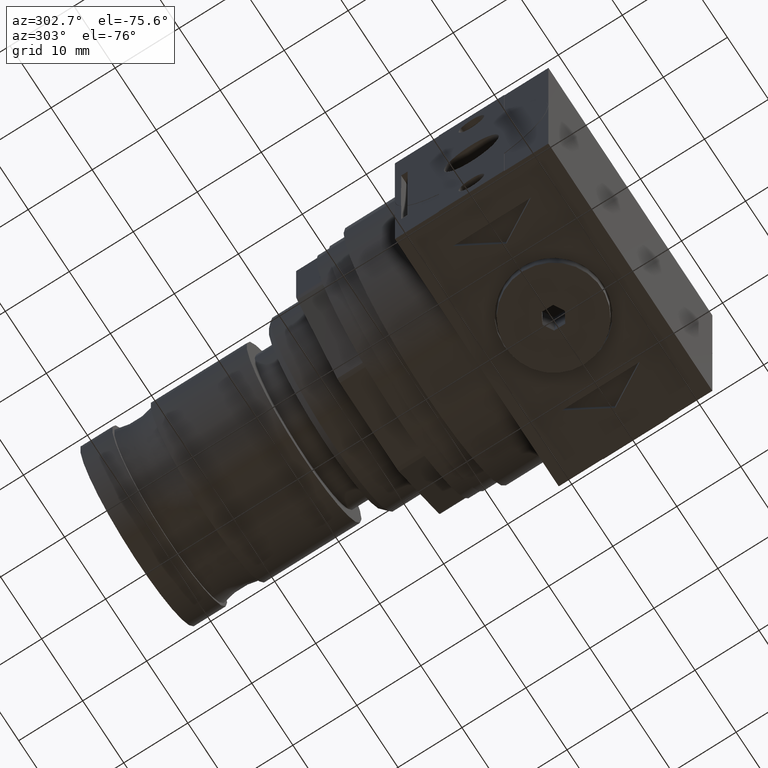
[diagram: clean part render]
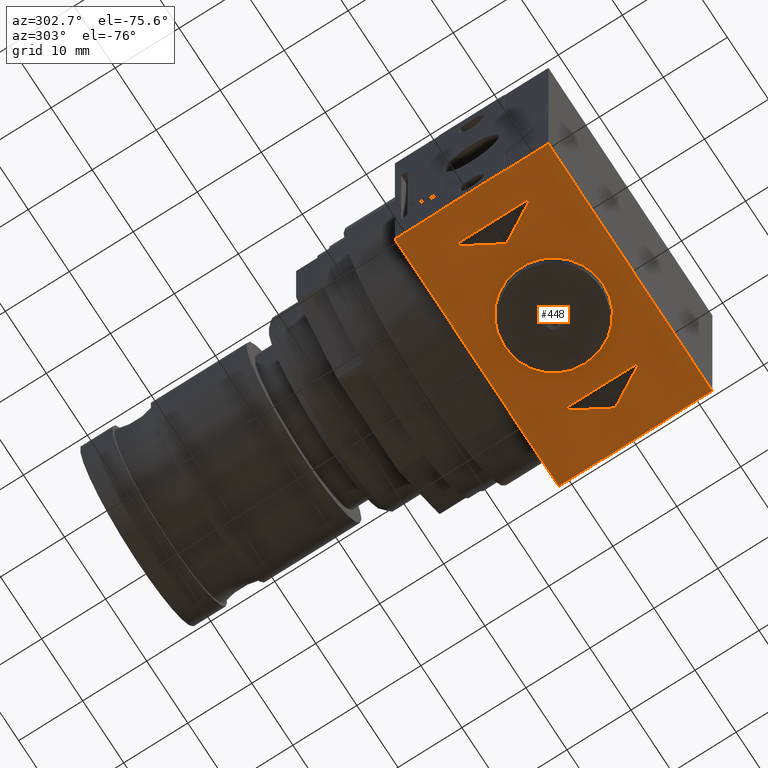
[diagram: same view with one face highlighted and labeled with its STEP entity id]
A machine part, auxiliary view. The second image highlights one B-rep face of the part: STEP entity #448.
In plain terms, the highlighted planar face has unit normal (0, 0, 1).
Its self-contained STEP definition (entity closure, byte-faithful):
#448 = ADVANCED_FACE( '', ( #901, #902, #903, #904 ), #905, .F. );
#901 = FACE_BOUND( '', #1346, .T. );
#902 = FACE_BOUND( '', #1347, .T. );
#903 = FACE_OUTER_BOUND( '', #1348, .T. );
#904 = FACE_BOUND( '', #1349, .T. );
#905 = PLANE( '', #1350 );
#1346 = EDGE_LOOP( '', ( #2329, #2330, #2331 ) );
#1347 = EDGE_LOOP( '', ( #2332 ) );
#1348 = EDGE_LOOP( '', ( #2333, #2334, #2335, #2336, #2337, #2338, #2339, #2340, #2341, #2342, #2343, #2344 ) );
#1349 = EDGE_LOOP( '', ( #2345, #2346, #2347 ) );
#1350 = AXIS2_PLACEMENT_3D( '', #2348, #2349, #2350 );
#2329 = ORIENTED_EDGE( '', *, *, #2712, .T. );
#2330 = ORIENTED_EDGE( '', *, *, #2793, .T. );
#2331 = ORIENTED_EDGE( '', *, *, #2627, .T. );
#2332 = ORIENTED_EDGE( '', *, *, #2700, .T. );
#2333 = ORIENTED_EDGE( '', *, *, #2795, .F. );
#2334 = ORIENTED_EDGE( '', *, *, #2737, .T. );
#2335 = ORIENTED_EDGE( '', *, *, #2797, .F. );
#2336 = ORIENTED_EDGE( '', *, *, #2696, .F. );
#2337 = ORIENTED_EDGE( '', *, *, #2706, .F. );
#2338 = ORIENTED_EDGE( '', *, *, #2652, .F. );
#2339 = ORIENTED_EDGE( '', *, *, #2785, .T. );
#2340 = ORIENTED_EDGE( '', *, *, #2525, .F. );
#2341 = ORIENTED_EDGE( '', *, *, #2741, .T. );
#2342 = ORIENTED_EDGE( '', *, *, #2644, .T. );
#2343 = ORIENTED_EDGE( '', *, *, #2702, .T. );
#2344 = ORIENTED_EDGE( '', *, *, #2690, .T. );
#2345 = ORIENTED_EDGE( '', *, *, #2502, .T. );
#2346 = ORIENTED_EDGE( '', *, *, #2659, .T. );
#2347 = ORIENTED_EDGE( '', *, *, #2719, .T. );
#2348 = CARTESIAN_POINT( '', ( 19.9500000000000, -12.0000000000000, -20.0000000000000 ) );
#2349 = DIRECTION( '', ( 0.000000000000000, 0.000000000000000, 1.00000000000000 ) );
#2350 = DIRECTION( '', ( 1.00000000000000, 0.000000000000000, -0.000000000000000 ) );
#2502 = EDGE_CURVE( '', #2951, #2952, #2953, .T. );
#2525 = EDGE_CURVE( '', #2990, #2986, #2992, .T. );
#2627 = EDGE_CURVE( '', #3155, #3156, #3157, .T. );
#2644 = EDGE_CURVE( '', #3179, #3177, #3180, .T. );
#2652 = EDGE_CURVE( '', #3190, #3192, #3193, .T. );
#2659 = EDGE_CURVE( '', #2952, #3202, #3203, .T. );
#2690 = EDGE_CURVE( '', #3244, #3242, #3245, .T. );
#2696 = EDGE_CURVE( '', #3250, #3252, #3253, .T. );
#2700 = EDGE_CURVE( '', #3257, #3257, #3258, .T. );
#2702 = EDGE_CURVE( '', #3177, #3244, #3260, .T. );
#2706 = EDGE_CURVE( '', #3192, #3250, #3264, .T. );
#2712 = EDGE_CURVE( '', #3156, #3270, #3271, .T. );
#2719 = EDGE_CURVE( '', #3202, #2951, #3280, .T. );
#2737 = EDGE_CURVE( '', #3303, #3301, #3304, .T. );
#2741 = EDGE_CURVE( '', #2990, #3179, #3309, .T. );
#2785 = EDGE_CURVE( '', #3190, #2986, #3360, .T. );
#2793 = EDGE_CURVE( '', #3270, #3155, #3368, .T. );
#2795 = EDGE_CURVE( '', #3303, #3242, #3370, .T. );
#2797 = EDGE_CURVE( '', #3252, #3301, #3372, .T. );
#2951 = VERTEX_POINT( '', #3565 );
#2952 = VERTEX_POINT( '', #3566 );
#2953 = LINE( '', #3567, #3568 );
#2986 = VERTEX_POINT( '', #3612 );
#2990 = VERTEX_POINT( '', #3617 );
#2992 = LINE( '', #3620, #3621 );
#3155 = VERTEX_POINT( '', #3825 );
#3156 = VERTEX_POINT( '', #3826 );
#3157 = LINE( '', #3827, #3828 );
#3177 = VERTEX_POINT( '', #3858 );
#3179 = VERTEX_POINT( '', #3861 );
#3180 = LINE( '', #3862, #3863 );
#3190 = VERTEX_POINT( '', #3877 );
#3192 = VERTEX_POINT( '', #3880 );
#3193 = LINE( '', #3881, #3882 );
#3202 = VERTEX_POINT( '', #3892 );
#3203 = LINE( '', #3893, #3894 );
#3242 = VERTEX_POINT( '', #3948 );
#3244 = VERTEX_POINT( '', #3951 );
#3245 = LINE( '', #3952, #3953 );
#3250 = VERTEX_POINT( '', #3961 );
#3252 = VERTEX_POINT( '', #3964 );
#3253 = LINE( '', #3965, #3966 );
#3257 = VERTEX_POINT( '', #3972 );
#3258 = CIRCLE( '', #3973, 7.75000000000000 );
#3260 = LINE( '', #3975, #3976 );
#3264 = LINE( '', #3981, #3982 );
#3270 = VERTEX_POINT( '', #3989 );
#3271 = LINE( '', #3990, #3991 );
#3280 = LINE( '', #4004, #4005 );
#3301 = VERTEX_POINT( '', #4033 );
#3303 = VERTEX_POINT( '', #4036 );
#3304 = LINE( '', #4037, #4038 );
#3309 = LINE( '', #4044, #4045 );
#3360 = LINE( '', #4110, #4111 );
#3368 = LINE( '', #4120, #4121 );
#3370 = LINE( '', #4123, #4124 );
#3372 = LINE( '', #4126, #4127 );
#3565 = CARTESIAN_POINT( '', ( 15.0000000000000, 0.000000000000000, -20.0000000000000 ) );
#3566 = CARTESIAN_POINT( '', ( 11.5000000000000, 6.06217782649107, -20.0000000000000 ) );
#3567 = CARTESIAN_POINT( '', ( 15.0000000000000, 0.000000000000000, -20.0000000000000 ) );
#3568 = VECTOR( '', #4242, 1000.00000000000 );
#3612 = CARTESIAN_POINT( '', ( 19.9500000000000, -5.10000000000000, -20.0000000000000 ) );
#3617 = CARTESIAN_POINT( '', ( 19.9500000000000, -12.0000000000000, -20.0000000000000 ) );
#3620 = CARTESIAN_POINT( '', ( 19.9500000000000, -12.0000000000000, -20.0000000000000 ) );
#3621 = VECTOR( '', #4268, 1000.00000000000 );
#3825 = CARTESIAN_POINT( '', ( -15.0000000000000, -6.06217782649107, -20.0000000000000 ) );
#3826 = CARTESIAN_POINT( '', ( -11.5000000000000, 0.000000000000000, -20.0000000000000 ) );
#3827 = CARTESIAN_POINT( '', ( -15.0000000000000, -6.06217782649107, -20.0000000000000 ) );
#3828 = VECTOR( '', #4412, 1000.00000000000 );
#3858 = CARTESIAN_POINT( '', ( -19.9500000000000, -5.10000000000000, -20.0000000000000 ) );
#3861 = CARTESIAN_POINT( '', ( -19.9500000000000, -12.0000000000000, -20.0000000000000 ) );
#3862 = CARTESIAN_POINT( '', ( -19.9500000000000, -12.0000000000000, -20.0000000000000 ) );
#3863 = VECTOR( '', #4424, 1000.00000000000 );
#3877 = CARTESIAN_POINT( '', ( 20.0000000000000, -5.10000000000000, -20.0000000000000 ) );
#3880 = CARTESIAN_POINT( '', ( 20.0000000000000, 5.10000000000000, -20.0000000000000 ) );
#3881 = CARTESIAN_POINT( '', ( 20.0000000000000, -5.10000000000000, -20.0000000000000 ) );
#3882 = VECTOR( '', #4433, 1000.00000000000 );
#3892 = CARTESIAN_POINT( '', ( 11.5000000000000, -6.06217782649107, -20.0000000000000 ) );
#3893 = CARTESIAN_POINT( '', ( 11.5000000000000, 6.06217782649107, -20.0000000000000 ) );
#3894 = VECTOR( '', #4441, 1000.00000000000 );
#3948 = CARTESIAN_POINT( '', ( -20.0000000000000, 5.10000000000000, -20.0000000000000 ) );
#3951 = CARTESIAN_POINT( '', ( -20.0000000000000, -5.10000000000000, -20.0000000000000 ) );
#3952 = CARTESIAN_POINT( '', ( -20.0000000000000, -5.10000000000000, -20.0000000000000 ) );
#3953 = VECTOR( '', #4473, 1000.00000000000 );
#3961 = CARTESIAN_POINT( '', ( 19.9500000000000, 5.10000000000000, -20.0000000000000 ) );
#3964 = CARTESIAN_POINT( '', ( 19.9500000000000, 12.0000000000000, -20.0000000000000 ) );
#3965 = CARTESIAN_POINT( '', ( 19.9500000000000, -12.0000000000000, -20.0000000000000 ) );
#3966 = VECTOR( '', #4478, 1000.00000000000 );
#3972 = CARTESIAN_POINT( '', ( 0.000000000000000, -7.75000000000000, -20.0000000000000 ) );
#3973 = AXIS2_PLACEMENT_3D( '', #4481, #4482, #4483 );
#3975 = CARTESIAN_POINT( '', ( 20.0000000000000, -5.10000000000000, -20.0000000000000 ) );
#3976 = VECTOR( '', #4484, 1000.00000000000 );
#3981 = CARTESIAN_POINT( '', ( 20.0000000000000, 5.10000000000000, -20.0000000000000 ) );
#3982 = VECTOR( '', #4486, 1000.00000000000 );
#3989 = CARTESIAN_POINT( '', ( -15.0000000000000, 6.06217782649107, -20.0000000000000 ) );
#3990 = CARTESIAN_POINT( '', ( -11.5000000000000, 0.000000000000000, -20.0000000000000 ) );
#3991 = VECTOR( '', #4488, 1000.00000000000 );
#4004 = CARTESIAN_POINT( '', ( 11.5000000000000, -6.06217782649107, -20.0000000000000 ) );
#4005 = VECTOR( '', #4493, 1000.00000000000 );
#4033 = CARTESIAN_POINT( '', ( -19.9500000000000, 12.0000000000000, -20.0000000000000 ) );
#4036 = CARTESIAN_POINT( '', ( -19.9500000000000, 5.10000000000000, -20.0000000000000 ) );
#4037 = CARTESIAN_POINT( '', ( -19.9500000000000, -12.0000000000000, -20.0000000000000 ) );
#4038 = VECTOR( '', #4511, 1000.00000000000 );
#4044 = CARTESIAN_POINT( '', ( 19.9500000000000, -12.0000000000000, -20.0000000000000 ) );
#4045 = VECTOR( '', #4516, 1000.00000000000 );
#4110 = CARTESIAN_POINT( '', ( 20.0000000000000, -5.10000000000000, -20.0000000000000 ) );
#4111 = VECTOR( '', #4552, 1000.00000000000 );
#4120 = CARTESIAN_POINT( '', ( -15.0000000000000, 6.06217782649107, -20.0000000000000 ) );
#4121 = VECTOR( '', #4554, 1000.00000000000 );
#4123 = CARTESIAN_POINT( '', ( 20.0000000000000, 5.10000000000000, -20.0000000000000 ) );
#4124 = VECTOR( '', #4555, 1000.00000000000 );
#4126 = CARTESIAN_POINT( '', ( 19.9500000000000, 12.0000000000000, -20.0000000000000 ) );
#4127 = VECTOR( '', #4556, 1000.00000000000 );
#4242 = DIRECTION( '', ( -0.500000000000000, 0.866025403784439, 0.000000000000000 ) );
#4268 = DIRECTION( '', ( 0.000000000000000, 1.00000000000000, 0.000000000000000 ) );
#4412 = DIRECTION( '', ( 0.500000000000000, 0.866025403784439, 0.000000000000000 ) );
#4424 = DIRECTION( '', ( 0.000000000000000, 1.00000000000000, 0.000000000000000 ) );
#4433 = DIRECTION( '', ( 0.000000000000000, 1.00000000000000, 0.000000000000000 ) );
#4441 = DIRECTION( '', ( 0.000000000000000, -1.00000000000000, 0.000000000000000 ) );
#4473 = DIRECTION( '', ( 0.000000000000000, 1.00000000000000, 0.000000000000000 ) );
#4478 = DIRECTION( '', ( 0.000000000000000, 1.00000000000000, 0.000000000000000 ) );
#4481 = CARTESIAN_POINT( '', ( 0.000000000000000, -2.44929359829471E-015, -20.0000000000000 ) );
#4482 = DIRECTION( '', ( -0.000000000000000, 1.22464679914735E-016, 1.00000000000000 ) );
#4483 = DIRECTION( '', ( 0.000000000000000, -1.00000000000000, 1.22464679914735E-016 ) );
#4484 = DIRECTION( '', ( -1.00000000000000, -0.000000000000000, -0.000000000000000 ) );
#4486 = DIRECTION( '', ( -1.00000000000000, -0.000000000000000, -0.000000000000000 ) );
#4488 = DIRECTION( '', ( -0.500000000000000, 0.866025403784439, 0.000000000000000 ) );
#4493 = DIRECTION( '', ( 0.500000000000000, 0.866025403784439, 0.000000000000000 ) );
#4511 = DIRECTION( '', ( 0.000000000000000, 1.00000000000000, 0.000000000000000 ) );
#4516 = DIRECTION( '', ( -1.00000000000000, -0.000000000000000, -0.000000000000000 ) );
#4552 = DIRECTION( '', ( -1.00000000000000, -0.000000000000000, -0.000000000000000 ) );
#4554 = DIRECTION( '', ( 0.000000000000000, -1.00000000000000, 0.000000000000000 ) );
#4555 = DIRECTION( '', ( -1.00000000000000, -0.000000000000000, -0.000000000000000 ) );
#4556 = DIRECTION( '', ( -1.00000000000000, -0.000000000000000, -0.000000000000000 ) );